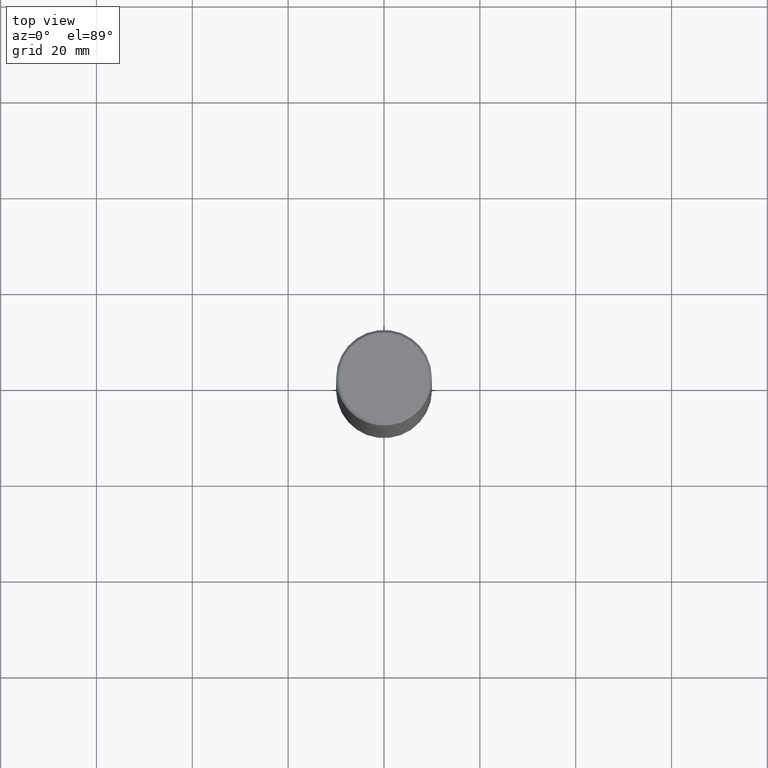
[diagram: clean part render]
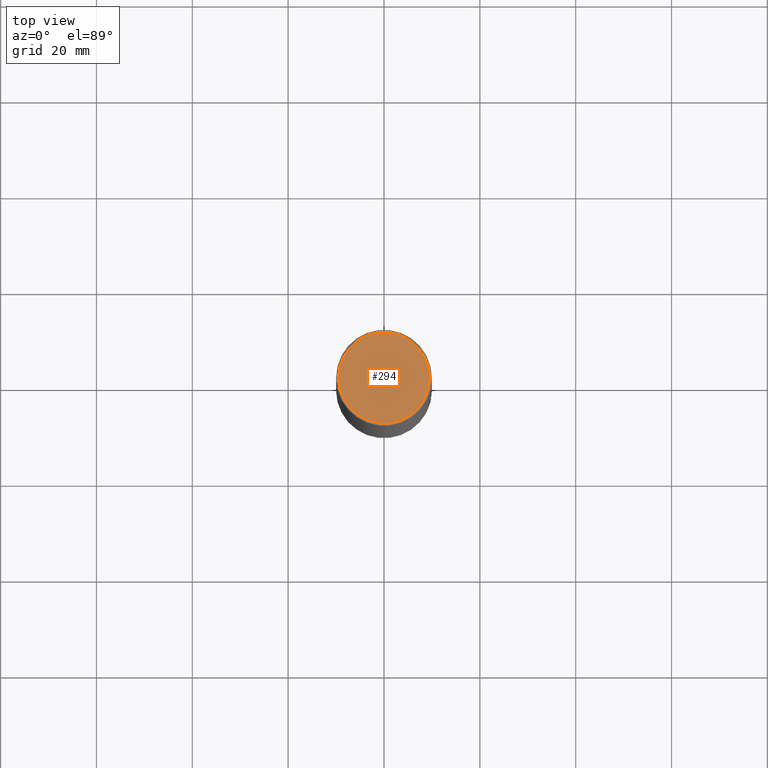
[diagram: same view with one face highlighted and labeled with its STEP entity id]
A machine part, top view. The second image highlights one B-rep face of the part: STEP entity #294.
In plain terms, the highlighted planar face has unit normal (0, -0, -1).
Its self-contained STEP definition (entity closure, byte-faithful):
#16 = CARTESIAN_POINT ( 'NONE',  ( -0.3737000000000000322, 2.644447966039789058E-15, 6.829619984158820247E-17 ) ) ;
#83 = DIRECTION ( 'NONE',  ( -2.445468806185136597E-29, 3.491481338843145583E-15, 1.000000000000000000 ) ) ;
#91 = PLANE ( 'NONE',  #388 ) ;
#121 = CARTESIAN_POINT ( 'NONE',  ( -1.670162262936351711E-45, 2.384549072608715520E-31, 6.829619984160658046E-17 ) ) ;
#127 = DIRECTION ( 'NONE',  ( 2.438088387897960049E-29, -3.491481338843145188E-15, -1.000000000000000000 ) ) ;
#131 = EDGE_CURVE ( 'NONE', #389, #205, #348, .T. ) ;
#137 = ORIENTED_EDGE ( 'NONE', *, *, #131, .T. ) ;
#155 = CARTESIAN_POINT ( 'NONE',  ( 0.3737000000000000322, -2.667287895133368753E-15, 6.829619984162503241E-17 ) ) ;
#170 = AXIS2_PLACEMENT_3D ( 'NONE', #275, #83, #411 ) ;
#183 = CARTESIAN_POINT ( 'NONE',  ( 2.609533152651357803E-15, 0.3737000000000000322, -1.270618476404880419E-15 ) ) ;
#189 = AXIS2_PLACEMENT_3D ( 'NONE', #121, #340, #301 ) ;
#191 = DIRECTION ( 'NONE',  ( -1.000000000000000000, 6.982962677686265922E-15, -4.876176775795935793E-29 ) ) ;
#205 = VERTEX_POINT ( 'NONE', #155 ) ;
#275 = CARTESIAN_POINT ( 'NONE',  ( -1.670162262936351711E-45, 2.384549072608715520E-31, 6.829619984160658046E-17 ) ) ;
#286 = ORIENTED_EDGE ( 'NONE', *, *, #381, .T. ) ;
#293 = CIRCLE ( 'NONE', #189, 0.3737000000000000322 ) ;
#294 = ADVANCED_FACE ( 'NONE', ( #418 ), #91, .F. ) ;
#301 = DIRECTION ( 'NONE',  ( 1.000000000000000000, -6.982962677686266711E-15, 4.877734241229875126E-29 ) ) ;
#340 = DIRECTION ( 'NONE',  ( -2.445468806185136597E-29, 3.491481338843145583E-15, 1.000000000000000000 ) ) ;
#348 = CIRCLE ( 'NONE', #170, 0.3737000000000000322 ) ;
#349 = EDGE_LOOP ( 'NONE', ( #137, #286 ) ) ;
#381 = EDGE_CURVE ( 'NONE', #205, #389, #293, .T. ) ;
#388 = AXIS2_PLACEMENT_3D ( 'NONE', #183, #127, #191 ) ;
#389 = VERTEX_POINT ( 'NONE', #16 ) ;
#411 = DIRECTION ( 'NONE',  ( 1.000000000000000000, -6.982962677686266711E-15, 4.877734241229875126E-29 ) ) ;
#418 = FACE_OUTER_BOUND ( 'NONE', #349, .T. ) ;